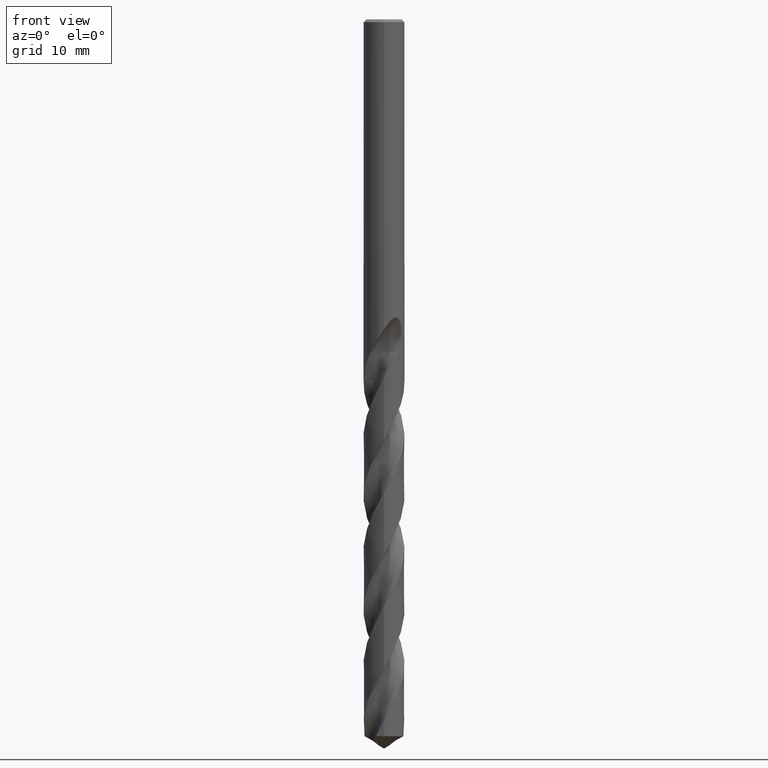
[diagram: clean part render]
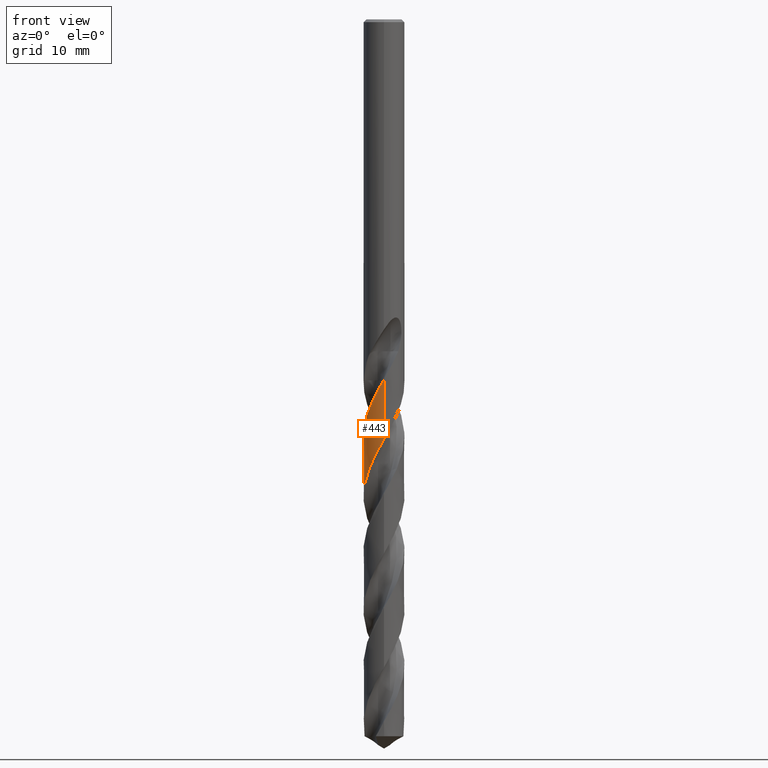
[diagram: same view with one face highlighted and labeled with its STEP entity id]
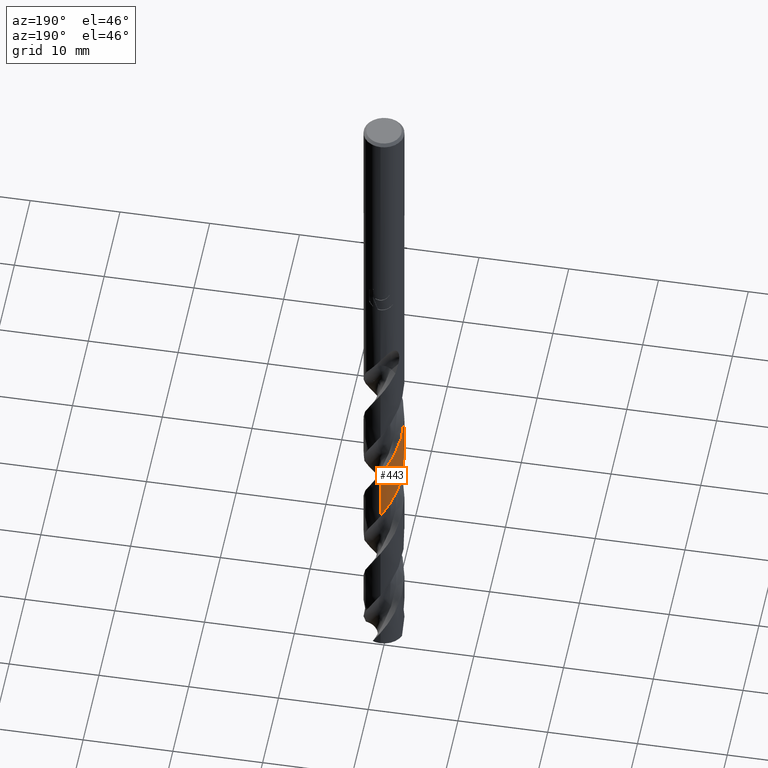
[diagram: same view with one face highlighted and labeled with its STEP entity id]
A machine part, front view. The second image highlights one B-rep face of the part: STEP entity #443.
A second angle (auxiliary view) of the same face is appended — the face is thin or edge-on in the first view.
In plain terms, the highlighted conical surface has half-angle 0 deg.
Its self-contained STEP definition (entity closure, byte-faithful):
#405=EDGE_CURVE('',#457,#571,#977,.T.);
#443=ADVANCED_FACE('',(#1020),#1021,.T.);
#457=VERTEX_POINT('',#1036);
#469=VERTEX_POINT('',#1049);
#495=EDGE_CURVE('',#541,#457,#1077,.T.);
#541=VERTEX_POINT('',#1126);
#549=EDGE_CURVE('',#603,#805,#1134,.T.);
#571=VERTEX_POINT('',#1157);
#591=EDGE_CURVE('',#805,#469,#1179,.T.);
#603=VERTEX_POINT('',#1192);
#625=EDGE_CURVE('',#469,#541,#1216,.T.);
#805=VERTEX_POINT('',#1414);
#845=EDGE_CURVE('',#571,#603,#1458,.T.);
#977=B_SPLINE_CURVE_WITH_KNOTS('',3,(#2344,#2345,#2346,#2347,#2348,#2349,#2350,#2351,#2352,#2353,#2354,#2355,#2356,#2357,#2358,#2359,#2360,#2361,#2362,#2363,#2364,#2365,#2366,#2367,#2368,#2369,#2370,#2371,#2372,#2373,#2374,#2375,#2376,#2377,#2378,#2379,#2380,#2381,#2382,#2383,#2384,#2385,#2386,#2387,#2388,#2389,#2390,#2391,#2392,#2393,#2394,#2395,#2396,#2397,#2398,#2399,#2400,#2401,#2402,#2403,#2404,#2405,#2406,#2407,#2408,#2409,#2410,#2411,#2412,#2413,#2414,#2415,#2416,#2417,#2418,#2419,#2420,#2421,#2422,#2423,#2424,#2425,#2426,#2427,#2428,#2429,#2430,#2431,#2432,#2433,#2434,#2435,#2436,#2437,#2438,#2439,#2440,#2441,#2442,#2443,#2444,#2445,#2446,#2447,#2448,#2449,#2450,#2451,#2452,#2453,#2454,#2455,#2456,#2457,#2458,#2459,#2460,#2461,#2462,#2463,#2464,#2465,#2466,#2467,#2468,#2469,#2470,#2471),.UNSPECIFIED.,.F.,.F.,(4,2,2,2,2,2,2,2,2,2,2,2,2,2,2,2,2,2,2,2,2,2,2,2,2,2,2,2,2,2,2,2,2,2,2,2,2,2,2,2,2,2,2,2,2,2,2,2,2,2,2,2,2,2,2,2,2,2,2,2,2,2,2,4),(0.0,0.046626105332694,1.52303062056341,1.60058356911994,2.63045622933239,3.44019374165606,4.20498013125585,4.9717848063284,5.73691613728078,6.42916490255406,7.14802441093408,7.50254210275742,7.88565692215831,9.10511130996753,9.46227653262518,10.7256201708062,11.0531563400896,12.3841365176078,12.4574909191951,13.5003142543707,14.2731887849618,15.0422712599912,15.8163637698362,16.5857683178226,17.3611000679746,18.1308515360856,18.9074995397428,19.6600557118806,19.9981027499612,20.3682595125857,21.6209614850256,21.9630158846076,22.7440382981721,23.1353269047853,23.5027115491637,24.7574153406646,25.0998434584361,26.4072999052785,26.5637828950674,27.5771845396807,28.3575409892745,29.1337269472155,29.9153056347284,30.691774200603,31.019176595345,31.3766504927826,32.6605784774508,32.9899875079832,34.3505636072138,34.4194296877377,35.4103355722,36.1930438791975,36.9433267471512,37.3363503040421,37.6886722683978,38.9829324948741,39.3058193511524,40.0052871197194,41.2145371978444,42.1207740107926,42.4587334587405,43.652867388373,43.9518863491227,44.8531166781693),.UNSPECIFIED.);
#1020=FACE_OUTER_BOUND('',#2949,.T.);
#1021=CONICAL_SURFACE('',#2950,2.24995,2.56094645322142E-006);
#1036=CARTESIAN_POINT('',(1.41665182098329E-015,2.24994862443339,-58.5868996756251));
#1049=CARTESIAN_POINT('',(-0.0728294915093073,-2.24872095483746,-39.605));
#1077=LINE('',#4927,#4928);
#1126=CARTESIAN_POINT('',(9.31210746892574E-014,2.24993173351739,-51.9913240512082));
#1134=CIRCLE('',#5456,2.2499);
#1157=CARTESIAN_POINT('',(-6.30142578069921E-015,-2.24991657320539,-46.0715157838117));
#1179=B_SPLINE_CURVE_WITH_KNOTS('',3,(#5821,#5822,#5823,#5824),.UNSPECIFIED.,.F.,.F.,(4,4),(0.0,0.00715203021404983),.UNSPECIFIED.);
#1192=CARTESIAN_POINT('',(2.75733494688146E-016,-2.2499,-39.6));
#1216=B_SPLINE_CURVE_WITH_KNOTS('',3,(#6279,#6280,#6281,#6282,#6283,#6284,#6285,#6286,#6287,#6288,#6289,#6290,#6291,#6292,#6293,#6294,#6295,#6296,#6297,#6298,#6299,#6300,#6301,#6302,#6303,#6304,#6305,#6306,#6307,#6308,#6309,#6310,#6311,#6312,#6313,#6314,#6315,#6316,#6317,#6318,#6319,#6320,#6321,#6322,#6323,#6324,#6325,#6326,#6327,#6328,#6329,#6330,#6331,#6332,#6333,#6334,#6335,#6336,#6337,#6338,#6339,#6340,#6341,#6342,#6343,#6344,#6345,#6346,#6347,#6348,#6349,#6350,#6351,#6352,#6353,#6354,#6355,#6356,#6357,#6358,#6359,#6360,#6361,#6362,#6363,#6364,#6365,#6366,#6367,#6368,#6369,#6370,#6371,#6372,#6373,#6374,#6375,#6376,#6377,#6378,#6379,#6380,#6381,#6382,#6383,#6384,#6385,#6386,#6387,#6388,#6389,#6390,#6391,#6392,#6393,#6394,#6395,#6396,#6397,#6398,#6399,#6400,#6401,#6402,#6403,#6404),.UNSPECIFIED.,.F.,.F.,(4,2,2,2,2,2,2,2,2,2,2,2,2,2,2,2,2,2,2,2,2,2,2,2,2,2,2,2,2,2,2,2,2,2,2,2,2,2,2,2,2,2,2,2,2,2,2,2,2,2,2,2,2,2,2,2,2,2,2,2,2,2,4),(0.0,0.658729216683421,1.41215630054501,2.17567937693512,2.84104372952699,3.80100609495203,4.40122980618593,5.37153088194921,5.97004463453037,6.94667565587124,7.52898634347589,8.49241882089995,9.09906432882466,10.0687988276058,10.6633012057108,11.6346131574829,12.2267375896249,13.1972037725061,13.7902881110979,14.7568783124103,15.3561964212298,16.3233247293204,16.9217909949564,17.8943225838319,18.4832218702127,19.4523313150443,20.0467742523671,21.0124747659317,21.6123982717566,22.5803802871329,23.1763179699382,24.147721674267,24.7376518654971,25.7065519451112,26.3002288072129,27.2645030612506,27.8660831439952,28.8353545217715,29.4279794290688,30.3979668895634,30.9894424952592,31.9581708747707,32.5510155215776,33.5140617183705,34.1169565006315,35.0872688177618,35.6770455252121,36.6462140108403,37.2382742991893,38.2050991178377,38.7995758258438,39.7652755425382,40.3653721289317,41.3329106281574,42.189549699275,42.8410567538943,43.821409700905,44.3129456817854,44.559120571765,44.6820168018251,44.743335728927,44.7739500392543,44.8045338999504),.UNSPECIFIED.);
#1414=CARTESIAN_POINT('',(-0.0700107695074459,-2.24881046381259,-39.6));
#1458=LINE('',#12367,#12368);
#2344=CARTESIAN_POINT('',(-2.13356564105792,0.714421203000788,-78.648063607188));
#2345=CARTESIAN_POINT('',(-2.13597707287533,0.707219532355066,-78.6345035263664));
#2346=CARTESIAN_POINT('',(-2.13836599832151,0.699964201412139,-78.6208663618118));
#2347=CARTESIAN_POINT('',(-2.21582415216922,0.460559416619306,-78.1718894200244));
#2348=CARTESIAN_POINT('',(-2.2527600562497,0.217647160011659,-77.745779033342));
#2349=CARTESIAN_POINT('',(-2.24968224647403,-0.0397385138197253,-77.2887371671865));
#2350=CARTESIAN_POINT('',(-2.24941900662021,-0.0525675419046345,-77.265935451697));
#2351=CARTESIAN_POINT('',(-2.24408327532203,-0.235993620306689,-76.9401145936586));
#2352=CARTESIAN_POINT('',(-2.21972971178272,-0.405671173093037,-76.6399066016155));
#2353=CARTESIAN_POINT('',(-2.1421151761138,-0.701371048223354,-76.0994202140747));
#2354=CARTESIAN_POINT('',(-2.09639793266549,-0.828024482625447,-75.8605455866581));
#2355=CARTESIAN_POINT('',(-1.98614649095973,-1.06479021199205,-75.3979563739663));
#2356=CARTESIAN_POINT('',(-1.92293801709995,-1.17511716177583,-75.1744854477128));
#2357=CARTESIAN_POINT('',(-1.77828589858572,-1.384330269099,-74.7247563860269));
#2358=CARTESIAN_POINT('',(-1.69720583320169,-1.48259964291556,-74.4987164213839));
#2359=CARTESIAN_POINT('',(-1.51961704068258,-1.66412071891246,-74.0489109677695));
#2360=CARTESIAN_POINT('',(-1.42336511087158,-1.74716989013794,-73.8254588964425));
#2361=CARTESIAN_POINT('',(-1.22752361024786,-1.88913361031106,-73.3977884493133));
#2362=CARTESIAN_POINT('',(-1.12960427451243,-1.94924272916124,-73.1939402166383));
#2363=CARTESIAN_POINT('',(-0.921928648278856,-2.05587538266568,-72.7800118543547));
#2364=CARTESIAN_POINT('',(-0.811868278059631,-2.10178856244135,-72.5701579384404));
#2365=CARTESIAN_POINT('',(-0.642637797396405,-2.15705826260807,-72.2556073495291));
#2366=CARTESIAN_POINT('',(-0.586106732484831,-2.17309624542548,-72.1518069159399));
#2367=CARTESIAN_POINT('',(-0.467438109668154,-2.20180503663225,-71.9355044340017));
#2368=CARTESIAN_POINT('',(-0.405300493043611,-2.21407999591319,-71.8228815743884));
#2369=CARTESIAN_POINT('',(-0.143918848493299,-2.25437411126589,-71.3534355998588));
#2370=CARTESIAN_POINT('',(0.0581997558897832,-2.2582222770135,-71.0009379010584));
#2371=CARTESIAN_POINT('',(0.316807167318883,-2.22834416953602,-70.5394561366976));
#2372=CARTESIAN_POINT('',(0.375008258616294,-2.21928832908909,-70.4346772620916));
#2373=CARTESIAN_POINT('',(0.637154111625234,-2.16790350263525,-69.9606275766487));
#2374=CARTESIAN_POINT('',(0.834893275313291,-2.09968795382708,-69.5962751918868));
#2375=CARTESIAN_POINT('',(1.06853861468388,-1.98078993203061,-69.1311249122114));
#2376=CARTESIAN_POINT('',(1.11569438081883,-1.95461811688728,-69.035171832922));
#2377=CARTESIAN_POINT('',(1.34987389474798,-1.81339120578875,-68.5500625420503));
#2378=CARTESIAN_POINT('',(1.52000506340524,-1.67330450631398,-68.1668208452966));
#2379=CARTESIAN_POINT('',(1.67521953719644,-1.50205184002138,-67.756054224332));
#2380=CARTESIAN_POINT('',(1.68324197150642,-1.4930560130715,-67.7346123443218));
#2381=CARTESIAN_POINT('',(1.80432442918728,-1.35506530767323,-67.4082865974613));
#2382=CARTESIAN_POINT('',(1.90252703823174,-1.21342350503619,-67.1063545954387));
#2383=CARTESIAN_POINT('',(2.04396207981116,-0.949136434431682,-66.5764289031396));
#2384=CARTESIAN_POINT('',(2.09440751153924,-0.831877173575464,-66.3500169799606));
#2385=CARTESIAN_POINT('',(2.17467304198058,-0.590927924387461,-65.9000328173082));
#2386=CARTESIAN_POINT('',(2.20451715925624,-0.467495866424875,-65.6768016788945));
#2387=CARTESIAN_POINT('',(2.24322346312235,-0.215874995306167,-65.2267794450379));
#2388=CARTESIAN_POINT('',(2.25183260879351,-0.0884054168600069,-65.0002193110163));
#2389=CARTESIAN_POINT('',(2.24743554446269,0.165523423308024,-64.5501667611604));
#2390=CARTESIAN_POINT('',(2.234563857262,0.291793948478507,-64.3270316861678));
#2391=CARTESIAN_POINT('',(2.18743622156561,0.542020018983954,-63.8769603236714));
#2392=CARTESIAN_POINT('',(2.15315529037305,0.665197463224516,-63.6502682987876));
#2393=CARTESIAN_POINT('',(2.06459748358182,0.903196829435719,-63.2001800578118));
#2394=CARTESIAN_POINT('',(2.01051827676301,1.01794107825283,-62.9771565483513));
#2395=CARTESIAN_POINT('',(1.88288805608854,1.23830706129914,-62.5270551509872));
#2396=CARTESIAN_POINT('',(1.80955124895833,1.34316388356748,-62.3002395027629));
#2397=CARTESIAN_POINT('',(1.64877354676389,1.53594038891254,-61.8552506450526));
#2398=CARTESIAN_POINT('',(1.5618924440154,1.62423041684539,-61.6373897885529));
#2399=CARTESIAN_POINT('',(1.4259256049664,1.74130108014382,-61.3203153995548));
#2400=CARTESIAN_POINT('',(1.38249563967589,1.77597424932228,-61.2221051985993));
#2401=CARTESIAN_POINT('',(1.28902311211854,1.84510394889251,-61.0160636530586));
#2402=CARTESIAN_POINT('',(1.23880559108682,1.87918395538833,-60.908118481173));
#2403=CARTESIAN_POINT('',(1.01300991789917,2.01945624273851,-60.4363446533933));
#2404=CARTESIAN_POINT('',(0.824761197844584,2.10336904798536,-60.0771725491432));
#2405=CARTESIAN_POINT('',(0.573904524353311,2.17624760019573,-59.6138592143668));
#2406=CARTESIAN_POINT('',(0.519611706676781,2.18984467139375,-59.514279293726));
#2407=CARTESIAN_POINT('',(0.33969691281166,2.22783173060822,-59.1880351196052));
#2408=CARTESIAN_POINT('',(0.212382761796578,2.24357224795598,-58.962406788328));
#2409=CARTESIAN_POINT('',(0.0200052243974036,2.25077716203444,-58.6222586893785));
#2410=CARTESIAN_POINT('',(-0.0442035373989093,2.25042736120685,-58.5088447316035));
#2411=CARTESIAN_POINT('',(-0.168351857112585,2.24444773328156,-58.2885479439499));
#2412=CARTESIAN_POINT('',(-0.228230421009015,2.23914764230311,-58.1816215521129));
#2413=CARTESIAN_POINT('',(-0.491228709263455,2.20522700614591,-57.7109762567727));
#2414=CARTESIAN_POINT('',(-0.690078600751872,2.15130713003745,-57.3519216020093));
#2415=CARTESIAN_POINT('',(-0.930438941811938,2.04930880548232,-56.8888070370556));
#2416=CARTESIAN_POINT('',(-0.981066069060655,2.02555883573877,-56.7893093734699));
#2417=CARTESIAN_POINT('',(-1.22071486681139,1.90203714336836,-56.310949544861));
#2418=CARTESIAN_POINT('',(-1.3955783589076,1.77768090899278,-55.9374863528916));
#2419=CARTESIAN_POINT('',(-1.56876800955435,1.61302597800688,-55.5131494368946));
#2420=CARTESIAN_POINT('',(-1.58694946574527,1.5951410094195,-55.4677760269086));
#2421=CARTESIAN_POINT('',(-1.72059983223551,1.45912661931232,-55.1289786494333));
#2422=CARTESIAN_POINT('',(-1.82322609520204,1.32873862717538,-54.838139816568));
#2423=CARTESIAN_POINT('',(-1.97813528447748,1.07957926546166,-54.3194820384301));
#2424=CARTESIAN_POINT('',(-2.03609035556355,0.965797117452161,-54.0930113820468));
#2425=CARTESIAN_POINT('',(-2.13179258783618,0.730554839531176,-53.6429975057739));
#2426=CARTESIAN_POINT('',(-2.16956346458878,0.609340476156731,-53.4198015608614));
#2427=CARTESIAN_POINT('',(-2.22449607890857,0.36074622156273,-52.9697604683759));
#2428=CARTESIAN_POINT('',(-2.24134774330143,0.234069940090666,-52.7431498631924));
#2429=CARTESIAN_POINT('',(-2.25340372319497,-0.0195811215441947,-52.2930998480296));
#2430=CARTESIAN_POINT('',(-2.2487423752343,-0.146379848524869,-52.0700210085379));
#2431=CARTESIAN_POINT('',(-2.22693147066513,-0.325306634653889,-51.7514142046814));
#2432=CARTESIAN_POINT('',(-2.21858051259314,-0.378066677670015,-51.6569762090859));
#2433=CARTESIAN_POINT('',(-2.1972352882353,-0.487581093870276,-51.4591560676348));
#2434=CARTESIAN_POINT('',(-2.18389941722324,-0.544197482010487,-51.3556749383699));
#2435=CARTESIAN_POINT('',(-2.11265846731802,-0.801550619272083,-50.881805991815));
#2436=CARTESIAN_POINT('',(-2.02920401820608,-0.994031191399031,-50.5163996810859));
#2437=CARTESIAN_POINT('',(-1.89251471246175,-1.21796054379854,-50.0508523653172));
#2438=CARTESIAN_POINT('',(-1.86301196466352,-1.26262843312418,-49.9556149508627));
#2439=CARTESIAN_POINT('',(-1.70330546705356,-1.48659265117139,-49.4676857610397));
#2440=CARTESIAN_POINT('',(-1.54898084071426,-1.64670987205533,-49.0810811282672));
#2441=CARTESIAN_POINT('',(-1.36512728861196,-1.78849297198109,-48.6683340106932));
#2442=CARTESIAN_POINT('',(-1.35622375538308,-1.7952540585498,-48.6484490781888));
#2443=CARTESIAN_POINT('',(-1.21802569160449,-1.89857700267409,-48.3417836280545));
#2444=CARTESIAN_POINT('',(-1.07857214969258,-1.98117667988243,-48.0575096820403));
#2445=CARTESIAN_POINT('',(-0.814668941704458,-2.10114793383859,-47.545140510801));
#2446=CARTESIAN_POINT('',(-0.694056993091125,-2.14398737307821,-47.3182807803388));
#2447=CARTESIAN_POINT('',(-0.452493176521025,-2.20733383114524,-46.8755419363504));
#2448=CARTESIAN_POINT('',(-0.331810583899009,-2.22868593843339,-46.6599496446227));
#2449=CARTESIAN_POINT('',(-0.145944216860898,-2.24609573478536,-46.3300583570717));
#2450=CARTESIAN_POINT('',(-0.0819071286230548,-2.24933640087513,-46.2167695435823));
#2451=CARTESIAN_POINT('',(0.0394724665437279,-2.2503017308256,-46.0015266462127));
#2452=CARTESIAN_POINT('',(0.0967556265786913,-2.24856538467578,-45.8995629885006));
#2453=CARTESIAN_POINT('',(0.364003657599119,-2.23023611705538,-45.4242268757806));
#2454=CARTESIAN_POINT('',(0.570893289073753,-2.18642862277342,-45.0559864573604));
#2455=CARTESIAN_POINT('',(0.817988094935593,-2.09660646481023,-44.5893338303975));
#2456=CARTESIAN_POINT('',(0.866650319956013,-2.07696614052252,-44.4959847766527));
#2457=CARTESIAN_POINT('',(1.01875578791399,-2.00928194010156,-44.2007026209014));
#2458=CARTESIAN_POINT('',(1.11929449237409,-1.95507762128265,-43.9995702319501));
#2459=CARTESIAN_POINT('',(1.38160417332907,-1.78669023658929,-43.4488704806842));
#2460=CARTESIAN_POINT('',(1.53293015363868,-1.65866849571919,-43.0990214232378));
#2461=CARTESIAN_POINT('',(1.76508257622413,-1.40301501970098,-42.4884447639598));
#2462=CARTESIAN_POINT('',(1.85334752559973,-1.28411048777691,-42.2286963389167));
#2463=CARTESIAN_POINT('',(1.95754193092906,-1.11046454733169,-41.8692978465856));
#2464=CARTESIAN_POINT('',(1.98408518316464,-1.06231529943533,-41.7714781931842));
#2465=CARTESIAN_POINT('',(2.09650524656418,-0.839403878937638,-41.3286140006927));
#2466=CARTESIAN_POINT('',(2.16121309181304,-0.655053505878789,-40.9875375974346));
#2467=CARTESIAN_POINT('',(2.21146493777766,-0.416963436306073,-40.5561480652668));
#2468=CARTESIAN_POINT('',(2.21996405481993,-0.369037501991153,-40.4696096720622));
#2469=CARTESIAN_POINT('',(2.24782533403263,-0.175663371534846,-40.1230366048528));
#2470=CARTESIAN_POINT('',(2.25451638327308,-0.0286363595320511,-39.864890858865));
#2471=CARTESIAN_POINT('',(2.24679470034184,0.118167852299402,-39.6049290579384));
#2949=EDGE_LOOP('',(#12513,#12514,#12515,#12516,#12517,#12518));
#2950=AXIS2_PLACEMENT_3D('',#12519,#12520,#12521);
#4927=CARTESIAN_POINT('',(-2.75320995436617E-016,2.24995,-59.124031803594));
#4928=VECTOR('',#12589,1.0);
#5456=AXIS2_PLACEMENT_3D('',#12627,#12628,#12629);
#5821=CARTESIAN_POINT('',(-0.070010769507435,-2.24881046381258,-39.6));
#5822=CARTESIAN_POINT('',(-0.0711813970878948,-2.24877402473754,-39.6020764891721));
#5823=CARTESIAN_POINT('',(-0.0723520005440927,-2.24873667146532,-39.6041529757432));
#5824=CARTESIAN_POINT('',(-0.0735225787930323,-2.24869840400938,-39.6062294598715));
#6279=CARTESIAN_POINT('',(-0.0725616041171575,-2.24872961374875,-39.6045248001466));
#6280=CARTESIAN_POINT('',(-0.180377583151535,-2.24525111710368,-39.7957770226307));
#6281=CARTESIAN_POINT('',(-0.287877009804448,-2.23402098838829,-39.9867762426494));
#6282=CARTESIAN_POINT('',(-0.515865047363405,-2.19344636505259,-40.3965960046911));
#6283=CARTESIAN_POINT('',(-0.635479525314108,-2.16182266966231,-40.6146221229189));
#6284=CARTESIAN_POINT('',(-0.869820578059051,-2.07873522932146,-41.0549531523091));
#6285=CARTESIAN_POINT('',(-0.984105927669838,-2.02713619823048,-41.276267078253));
#6286=CARTESIAN_POINT('',(-1.1888827478169,-1.91325289118593,-41.6909805114926));
#6287=CARTESIAN_POINT('',(-1.28021588665833,-1.85337852136125,-41.8836780829845));
#6288=CARTESIAN_POINT('',(-1.49177778176155,-1.69157533595764,-42.3555419580534));
#6289=CARTESIAN_POINT('',(-1.60642349066737,-1.58312283561881,-42.6336622207602));
#6290=CARTESIAN_POINT('',(-1.77287858572502,-1.38877033367966,-43.0865152383984));
#6291=CARTESIAN_POINT('',(-1.8319163693137,-1.30990618233231,-43.2603892559957));
#6292=CARTESIAN_POINT('',(-1.97236029416591,-1.09416080390912,-43.7163691343334));
#6293=CARTESIAN_POINT('',(-2.04478458763453,-0.951991378540909,-43.9975053567529));
#6294=CARTESIAN_POINT('',(-2.13666473337274,-0.711623306905782,-44.4529166318388));
#6295=CARTESIAN_POINT('',(-2.16566525157552,-0.617760248261072,-44.6263312236537));
#6296=CARTESIAN_POINT('',(-2.22561004680293,-0.366610299205836,-45.0837087324184));
#6297=CARTESIAN_POINT('',(-2.24606582104134,-0.207302038306092,-45.3666890833719));
#6298=CARTESIAN_POINT('',(-2.25142311764898,0.0483866024695222,-45.8192782551295));
#6299=CARTESIAN_POINT('',(-2.24733931775459,0.143887938347434,-45.9880249934174));
#6300=CARTESIAN_POINT('',(-2.2204413425286,0.395875919661977,-46.4369099103275));
#6301=CARTESIAN_POINT('',(-2.1871762345607,0.550796651391859,-46.7161277688134));
#6302=CARTESIAN_POINT('',(-2.10691975925456,0.795570560265481,-47.1720035271481));
#6303=CARTESIAN_POINT('',(-2.06968121810604,0.887948530660809,-47.3477990977527));
#6304=CARTESIAN_POINT('',(-1.95738478376582,1.12074539769072,-47.8056336348429));
#6305=CARTESIAN_POINT('',(-1.87328863043847,1.25628654012846,-48.086694130241));
#6306=CARTESIAN_POINT('',(-1.71565079717264,1.45883892299816,-48.5409228881661));
#6307=CARTESIAN_POINT('',(-1.65081927773649,1.53181407081285,-48.7132309651959));
#6308=CARTESIAN_POINT('',(-1.46818897960953,1.71229381800997,-49.1680463503362));
#6309=CARTESIAN_POINT('',(-1.34328338078012,1.81194918665339,-49.4495912048282));
#6310=CARTESIAN_POINT('',(-1.12689821233288,1.94979767276355,-49.903636141885));
#6311=CARTESIAN_POINT('',(-1.04168133328198,1.99662231673856,-50.0752755912146));
#6312=CARTESIAN_POINT('',(-0.809580796694942,2.10525186603138,-50.5292025227578));
#6313=CARTESIAN_POINT('',(-0.658620090507522,2.15725914122124,-50.810533370463));
#6314=CARTESIAN_POINT('',(-0.408513571541225,2.21467282519868,-51.2646597097878));
#6315=CARTESIAN_POINT('',(-0.312366266767322,2.23026375987884,-51.4365938806604));
#6316=CARTESIAN_POINT('',(-0.0577283187109262,2.25477125485639,-51.8897223150815));
#6317=CARTESIAN_POINT('',(0.101308656353814,2.25324269987442,-52.1699684223886));
#6318=CARTESIAN_POINT('',(0.356626884534056,2.22366684481984,-52.6248301495211));
#6319=CARTESIAN_POINT('',(0.453459783465728,2.20595579507681,-52.7985843026585));
#6320=CARTESIAN_POINT('',(0.702650428064502,2.14328186727769,-53.2537312351557));
#6321=CARTESIAN_POINT('',(0.852040358507039,2.0884066430359,-53.534163713206));
#6322=CARTESIAN_POINT('',(1.08257550063677,1.97481581060029,-53.988985040465));
#6323=CARTESIAN_POINT('',(1.16772850652154,1.92568616232704,-54.1625135618864));
#6324=CARTESIAN_POINT('',(1.38206728615519,1.78257340912426,-54.6190330457597));
#6325=CARTESIAN_POINT('',(1.50500947536434,1.68007911880512,-54.9010498770514));
#6326=CARTESIAN_POINT('',(1.68336422275193,1.49594918740497,-55.3547088714985));
#6327=CARTESIAN_POINT('',(1.74606012404362,1.42226697312475,-55.5254902755229));
#6328=CARTESIAN_POINT('',(1.89884991852217,1.21732898733423,-55.9782825639005));
#6329=CARTESIAN_POINT('',(1.98014578332365,1.08008531833165,-56.2593442796438));
#6330=CARTESIAN_POINT('',(2.08687487126283,0.846597287635208,-56.7136686494501));
#6331=CARTESIAN_POINT('',(2.1216177520945,0.755315699521586,-56.8860698256871));
#6332=CARTESIAN_POINT('',(2.19695333714554,0.510647276250552,-57.3395316758451));
#6333=CARTESIAN_POINT('',(2.22747326101805,0.35463718307186,-57.6196428146482));
#6334=CARTESIAN_POINT('',(2.24994661420967,0.0985296078624117,-58.0746199915809));
#6335=CARTESIAN_POINT('',(2.25210070811279,-2.91783601110984E-005,-58.2486247368478));
#6336=CARTESIAN_POINT('',(2.24085041318598,-0.257086838678332,-58.7043938431222));
#6337=CARTESIAN_POINT('',(2.21711364542795,-0.414670760032653,-58.9851929309048));
#6338=CARTESIAN_POINT('',(2.15222059884086,-0.663176894162996,-59.4397248289487));
#6339=CARTESIAN_POINT('',(2.12135050887142,-0.756121059261308,-59.6125973647731));
#6340=CARTESIAN_POINT('',(2.02454312284789,-0.99444926062222,-60.0682520645457));
#6341=CARTESIAN_POINT('',(1.94898810568145,-1.13542540631767,-60.3500659323562));
#6342=CARTESIAN_POINT('',(1.80454929948593,-1.34732502604268,-60.8038939789961));
#6343=CARTESIAN_POINT('',(1.74488108732817,-1.42374965574584,-60.97504742372));
#6344=CARTESIAN_POINT('',(1.57474287676151,-1.61486221006003,-61.428275237784));
#6345=CARTESIAN_POINT('',(1.45665141254596,-1.72215054740411,-61.709397665327));
#6346=CARTESIAN_POINT('',(1.24946845254283,-1.87367258183387,-62.1636357693397));
#6347=CARTESIAN_POINT('',(1.16712323317683,-1.92604094121552,-62.335889852435));
#6348=CARTESIAN_POINT('',(0.942861225397661,-2.04899684088994,-62.7889114448314));
#6349=CARTESIAN_POINT('',(0.796356276960249,-2.11026820410141,-63.0687330769617));
#6350=CARTESIAN_POINT('',(0.549896884159238,-2.18396572601631,-63.5239755218899));
#6351=CARTESIAN_POINT('',(0.45348402121743,-2.20599973154521,-63.6985351130765));
#6352=CARTESIAN_POINT('',(0.198831817858325,-2.24680271614905,-64.1553592840194));
#6353=CARTESIAN_POINT('',(0.039409507162087,-2.25524816770685,-64.4366505863568));
#6354=CARTESIAN_POINT('',(-0.216848258259561,-2.24160633262538,-64.8907912325948));
#6355=CARTESIAN_POINT('',(-0.313603868238329,-2.2301266266044,-65.0627802824486));
#6356=CARTESIAN_POINT('',(-0.565899736926722,-2.18345433662755,-65.5172573652606));
#6357=CARTESIAN_POINT('',(-0.719057748494363,-2.13792245560369,-65.7987850237727));
#6358=CARTESIAN_POINT('',(-0.955862925785162,-2.03914916837929,-66.2528480284619));
#6359=CARTESIAN_POINT('',(-1.04301152003451,-1.99597604566313,-66.4245226403139));
#6360=CARTESIAN_POINT('',(-1.26476011360256,-1.86763302285027,-66.8783469529334));
#6361=CARTESIAN_POINT('',(-1.39366037037151,-1.77353398982314,-67.1595409742769));
#6362=CARTESIAN_POINT('',(-1.58374752731976,-1.60112731097343,-67.6136844153771));
#6363=CARTESIAN_POINT('',(-1.65155862873212,-1.53108098456242,-67.7857721705505));
#6364=CARTESIAN_POINT('',(-1.81701888895305,-1.33635277217521,-68.2383914794894));
#6365=CARTESIAN_POINT('',(-1.90647973460204,-1.20530955141716,-68.5179803767201));
#6366=CARTESIAN_POINT('',(-2.02840860139621,-0.978654977801417,-68.9734463965612));
#6367=CARTESIAN_POINT('',(-2.06951865686071,-0.888419497619897,-69.148462329696));
#6368=CARTESIAN_POINT('',(-2.16091353044866,-0.646721576510206,-69.6061706492961));
#6369=CARTESIAN_POINT('',(-2.20130745464332,-0.492019046972357,-69.8878829933321));
#6370=CARTESIAN_POINT('',(-2.23940936861487,-0.238428237762963,-70.3416948958079));
#6371=CARTESIAN_POINT('',(-2.24759755298147,-0.141766411344566,-70.5129341178703));
#6372=CARTESIAN_POINT('',(-2.25270949485186,0.114270276872016,-70.9665413883489));
#6373=CARTESIAN_POINT('',(-2.23898471465102,0.273397513624409,-71.2479545266749));
#6374=CARTESIAN_POINT('',(-2.18996030617639,0.525325566196868,-71.7021467581987));
#6375=CARTESIAN_POINT('',(-2.16519687845754,0.619520522610252,-71.8740648817549));
#6376=CARTESIAN_POINT('',(-2.08417692821459,0.862475184815018,-72.3277027093754));
#6377=CARTESIAN_POINT('',(-2.01809171600035,1.00747379705611,-72.608469161782));
#6378=CARTESIAN_POINT('',(-1.88753820153603,1.2284901275116,-73.0627310024335));
#6379=CARTESIAN_POINT('',(-1.83241791032022,1.30928337994587,-73.2353649296356));
#6380=CARTESIAN_POINT('',(-1.67448238797891,1.51120090331257,-73.6894284186618));
#6381=CARTESIAN_POINT('',(-1.56373880383173,1.62553989682817,-73.9699049703217));
#6382=CARTESIAN_POINT('',(-1.36609240468793,1.79052475375067,-74.4255282297461));
#6383=CARTESIAN_POINT('',(-1.2862949904339,1.84868127009045,-74.5998146372271));
#6384=CARTESIAN_POINT('',(-1.06860603781413,1.98640812971767,-75.0560991357274));
#6385=CARTESIAN_POINT('',(-0.925559250836134,2.05696840378428,-75.3371232260759));
#6386=CARTESIAN_POINT('',(-0.643987310395715,2.16046159726856,-75.8679776967143));
#6387=CARTESIAN_POINT('',(-0.507549428746807,2.19651391111846,-76.116659419118));
#6388=CARTESIAN_POINT('',(-0.263113457086496,2.23711981598661,-76.5556916755864));
#6389=CARTESIAN_POINT('',(-0.156362517517747,2.24711010617836,-76.7451246187016));
#6390=CARTESIAN_POINT('',(0.111885096609817,2.2529863882705,-77.2200606897435));
#6391=CARTESIAN_POINT('',(0.272942089764134,2.23918804721232,-77.5045595433565));
#6392=CARTESIAN_POINT('',(0.510427689843733,2.19282576136993,-77.9329609885009));
#6393=CARTESIAN_POINT('',(0.588867887030399,2.17307741999146,-78.075898820512));
#6394=CARTESIAN_POINT('',(0.704777247902563,2.13715340842027,-78.2905707728298));
#6395=CARTESIAN_POINT('',(0.743126731464714,2.12412319238451,-78.362185711145));
#6396=CARTESIAN_POINT('',(0.800064224586704,2.10304633789102,-78.4695822457425));
#6397=CARTESIAN_POINT('',(0.81892724453982,2.09577316380917,-78.5053417237345));
#6398=CARTESIAN_POINT('',(0.847049656278838,2.0844921639103,-78.5589486053123));
#6399=CARTESIAN_POINT('',(0.856384837952626,2.08067438510931,-78.5767924012176));
#6400=CARTESIAN_POINT('',(0.870341103075264,2.0748569116069,-78.6035459359621));
#6401=CARTESIAN_POINT('',(0.874981966489825,2.07290412158709,-78.612455057992));
#6402=CARTESIAN_POINT('',(0.884245618683326,2.06896949703388,-78.6302647076775));
#6403=CARTESIAN_POINT('',(0.888868242384339,2.06698776698242,-78.6391645278919));
#6404=CARTESIAN_POINT('',(0.893483086900748,2.06499103470749,-78.648063607188));
#12367=CARTESIAN_POINT('',(2.75739617719915E-016,-2.24995,-59.124031803594));
#12368=VECTOR('',#12955,1.0);
#12513=ORIENTED_EDGE('',*,*,#495,.T.);
#12514=ORIENTED_EDGE('',*,*,#405,.T.);
#12515=ORIENTED_EDGE('',*,*,#845,.T.);
#12516=ORIENTED_EDGE('',*,*,#549,.T.);
#12517=ORIENTED_EDGE('',*,*,#591,.T.);
#12518=ORIENTED_EDGE('',*,*,#625,.T.);
#12519=CARTESIAN_POINT('',(0.0,0.0,-59.124031803594));
#12520=DIRECTION('',(0.0,-0.0,-1.0));
#12521=DIRECTION('',(0.0,1.0,0.0));
#12589=DIRECTION('',(-3.1361512984104E-022,2.56094645321862E-006,-0.999999999996721));
#12627=CARTESIAN_POINT('',(0.0,0.0,-39.6));
#12628=DIRECTION('',(0.0,0.0,-1.0));
#12629=DIRECTION('',(0.0,1.0,0.0));
#12955=DIRECTION('',(-3.1361512984104E-022,2.56094645321862E-006,0.999999999996721));